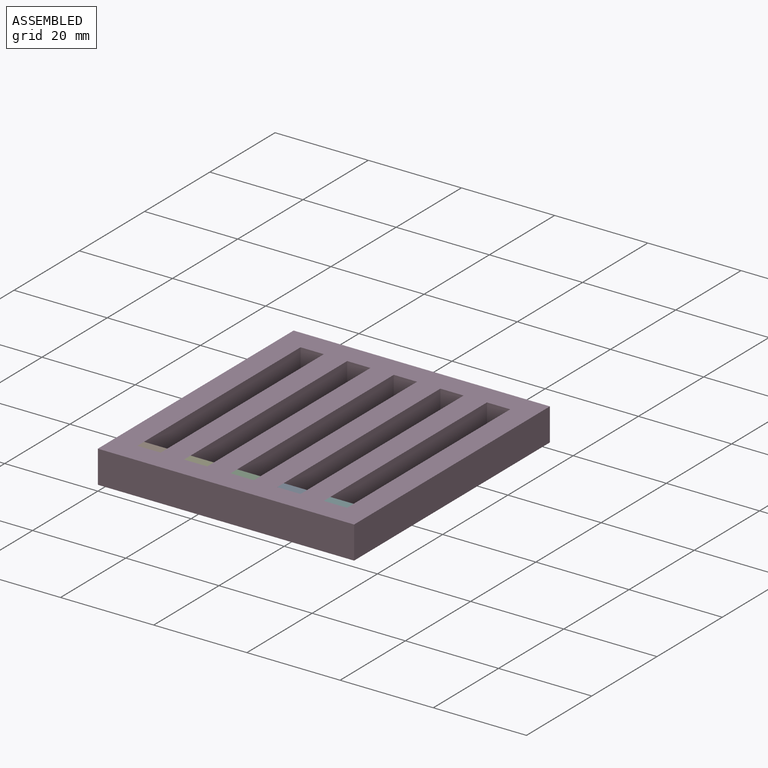
[diagram: assembled view]
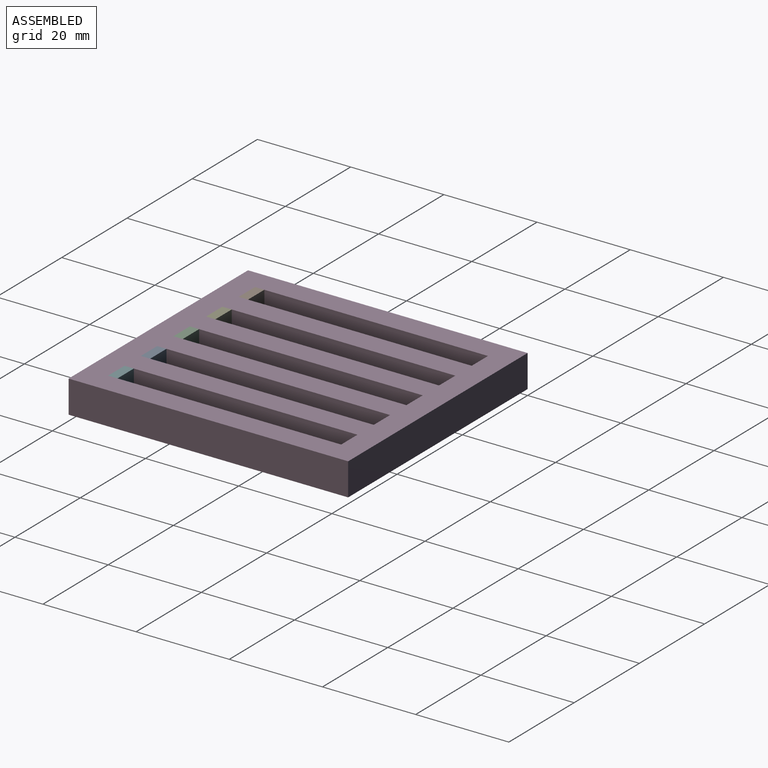
[diagram: assembled view, second angle]
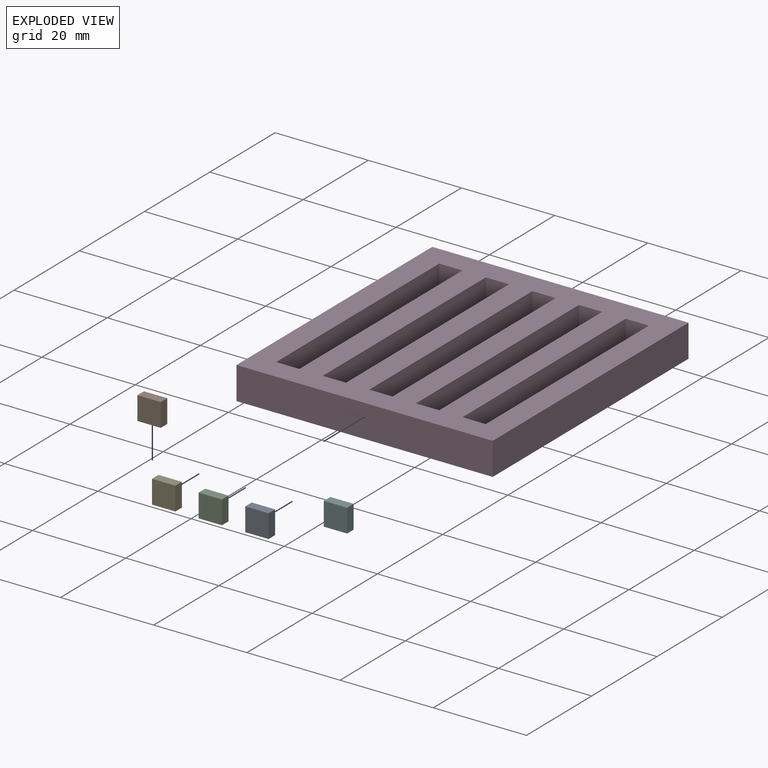
[diagram: exploded view]
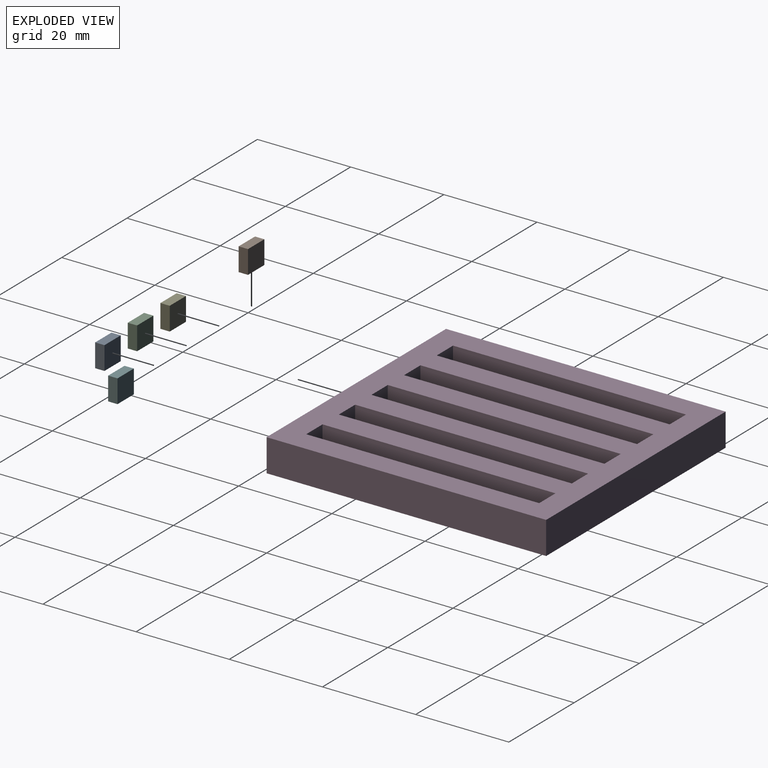
[diagram: exploded view, second angle]
ASSEMBLY  parts=6 mates=5
PART A: 6 faces, bbox 5x5x2 mm
  f0: plane 5x2mm, normal (0,1,0), area 10mm2, adj f1,f3,f4,f5
  f1: plane 5x2mm, normal (-1,0,0), area 10mm2, adj f0,f2,f4,f5
  f2: plane 5x2mm, normal (0,-1,0), area 10mm2, adj f1,f3,f4,f5
  f3: plane 5x2mm, normal (1,0,0), area 10mm2, adj f0,f2,f4,f5
  f4: plane 5x5mm, normal (0,0,1), area 25mm2, adj f0,f1,f2,f3
  f5: plane 5x5mm, normal (0,0,-1), area 25mm2, adj f0,f1,f2,f3
PART B: 6 faces, bbox 5x5x2 mm
  f0: plane 5x2mm, normal (0,1,0), area 10mm2, adj f1,f3,f4,f5
  f1: plane 5x2mm, normal (-1,0,0), area 10mm2, adj f0,f2,f4,f5
  f2: plane 5x2mm, normal (0,-1,0), area 10mm2, adj f1,f3,f4,f5
  f3: plane 5x2mm, normal (1,0,0), area 10mm2, adj f0,f2,f4,f5
  f4: plane 5x5mm, normal (0,0,1), area 25mm2, adj f0,f1,f2,f3
  f5: plane 5x5mm, normal (0,0,-1), area 25mm2, adj f0,f1,f2,f3
PART C: 6 faces, bbox 5x5x2 mm
  f0: plane 5x2mm, normal (0,1,0), area 10mm2, adj f1,f3,f4,f5
  f1: plane 5x2mm, normal (-1,0,0), area 10mm2, adj f0,f2,f4,f5
  f2: plane 5x2mm, normal (0,-1,0), area 10mm2, adj f1,f3,f4,f5
  f3: plane 5x2mm, normal (1,0,0), area 10mm2, adj f0,f2,f4,f5
  f4: plane 5x5mm, normal (0,0,1), area 25mm2, adj f0,f1,f2,f3
  f5: plane 5x5mm, normal (0,0,-1), area 25mm2, adj f0,f1,f2,f3
PART D: 31 faces, bbox 55x7x60 mm
  f0: plane 50x5mm, normal (1,0,0), area 250mm2, adj f1,f23,f24,f25
  f1: plane 5x5mm, normal (0,0,-1), area 25mm2, adj f0,f2,f24,f25
  f2: plane 50x5mm, normal (-1,0,0), area 250mm2, adj f1,f23,f24,f25
  f3: plane 50x5mm, normal (1,0,0), area 250mm2, adj f4,f18,f24,f26
  f4: plane 5x5mm, normal (0,0,-1), area 25mm2, adj f3,f5,f24,f26
  f5: plane 50x5mm, normal (-1,0,0), area 250mm2, adj f4,f18,f24,f26
  f6: plane 50x5mm, normal (1,0,0), area 250mm2, adj f7,f19,f24,f27
  f7: plane 5x5mm, normal (0,0,-1), area 25mm2, adj f6,f8,f24,f27
  f8: plane 50x5mm, normal (-1,0,0), area 250mm2, adj f7,f19,f24,f27
  f9: plane 50x5mm, normal (1,0,0), area 250mm2, adj f10,f20,f24,f28
  f10: plane 5x5mm, normal (0,0,-1), area 25mm2, adj f9,f11,f24,f28
  f11: plane 50x5mm, normal (-1,0,0), area 250mm2, adj f10,f20,f24,f28
  f12: plane 50x5mm, normal (1,0,0), area 250mm2, adj f13,f21,f24,f29
  f13: plane 5x5mm, normal (0,0,-1), area 25mm2, adj f12,f14,f24,f29
  f14: plane 50x5mm, normal (-1,0,0), area 250mm2, adj f13,f21,f24,f29
  f15: plane 55x7mm, normal (0,0,1), area 385mm2, adj f16,f22,f24,f30
  f16: plane 60x7mm, normal (-1,0,0), area 420mm2, adj f15,f17,f24,f30
  f17: plane 55x7mm, normal (0,0,-1), area 385mm2, adj f16,f22,f24,f30
  f18: plane 5x5mm, normal (0,0,1), area 25mm2, adj f3,f5,f24,f26
  f19: plane 5x5mm, normal (0,0,1), area 25mm2, adj f6,f8,f24,f27
  f20: plane 5x5mm, normal (0,0,1), area 25mm2, adj f9,f11,f24,f28
  f21: plane 5x5mm, normal (0,0,1), area 25mm2, adj f12,f14,f24,f29
  f22: plane 60x7mm, normal (1,0,0), area 420mm2, adj f15,f17,f24,f30
  f23: plane 5x5mm, normal (0,0,1), area 25mm2, adj f0,f2,f24,f25
  f24: plane 60x55mm, normal (0,-1,0), area 2050mm2, adj f0,f1,f2,f3,f4,f5,f6,f7
  f25: plane 50x5mm, normal (0,-1,0), area 250mm2, adj f0,f1,f2,f23
  f26: plane 50x5mm, normal (0,-1,0), area 250mm2, adj f3,f4,f5,f18
  f27: plane 50x5mm, normal (0,-1,0), area 250mm2, adj f6,f7,f8,f19
  f28: plane 50x5mm, normal (0,-1,0), area 250mm2, adj f9,f10,f11,f20
  f29: plane 50x5mm, normal (0,-1,0), area 250mm2, adj f12,f13,f14,f21
  f30: plane 60x55mm, normal (0,1,0), area 3300mm2, adj f15,f16,f17,f22
PART E: 6 faces, bbox 5x5x2 mm
  f0: plane 5x2mm, normal (0,1,0), area 10mm2, adj f1,f3,f4,f5
  f1: plane 5x2mm, normal (-1,0,0), area 10mm2, adj f0,f2,f4,f5
  f2: plane 5x2mm, normal (0,-1,0), area 10mm2, adj f1,f3,f4,f5
  f3: plane 5x2mm, normal (1,0,0), area 10mm2, adj f0,f2,f4,f5
  f4: plane 5x5mm, normal (0,0,1), area 25mm2, adj f0,f1,f2,f3
  f5: plane 5x5mm, normal (0,0,-1), area 25mm2, adj f0,f1,f2,f3
PART F: 6 faces, bbox 5x5x2 mm
  f0: plane 5x2mm, normal (0,1,0), area 10mm2, adj f1,f3,f4,f5
  f1: plane 5x2mm, normal (-1,0,0), area 10mm2, adj f0,f2,f4,f5
  f2: plane 5x2mm, normal (0,-1,0), area 10mm2, adj f1,f3,f4,f5
  f3: plane 5x2mm, normal (1,0,0), area 10mm2, adj f0,f2,f4,f5
  f4: plane 5x5mm, normal (0,0,1), area 25mm2, adj f0,f1,f2,f3
  f5: plane 5x5mm, normal (0,0,-1), area 25mm2, adj f0,f1,f2,f3
PLACE A rot(axis=(-1,0,0),90deg) t=(-5,-5,-5)mm
PLACE B rot(axis=(1,0,0),90deg) t=(-5,17,0)mm
PLACE C rot(axis=(-1,0,0),90deg) t=(-5,-5,-5)mm
PLACE D rot(axis=(-1,0,0),90deg) t=(-5,-5,-5)mm
PLACE E rot(axis=(1,0,0),90deg) t=(-5,17,0)mm
PLACE F rot(axis=(-1,0,0),90deg) t=(-5,-5,-5)mm
MATE slider D.f21 <-> F.f5  axis (0,-1,0) through (45,5,0)mm
MATE slider D.f19 <-> C.f5  axis (0,-1,0) through (25,5,0)mm
MATE slider D.f18 <-> E.f4  axis (0,-1,0) through (15,5,0)mm
MATE slider D.f20 <-> A.f5  axis (0,-1,0) through (35,5,0)mm
MATE slider D.f23 <-> B.f4  axis (0,-1,0) through (5,5,0)mm
